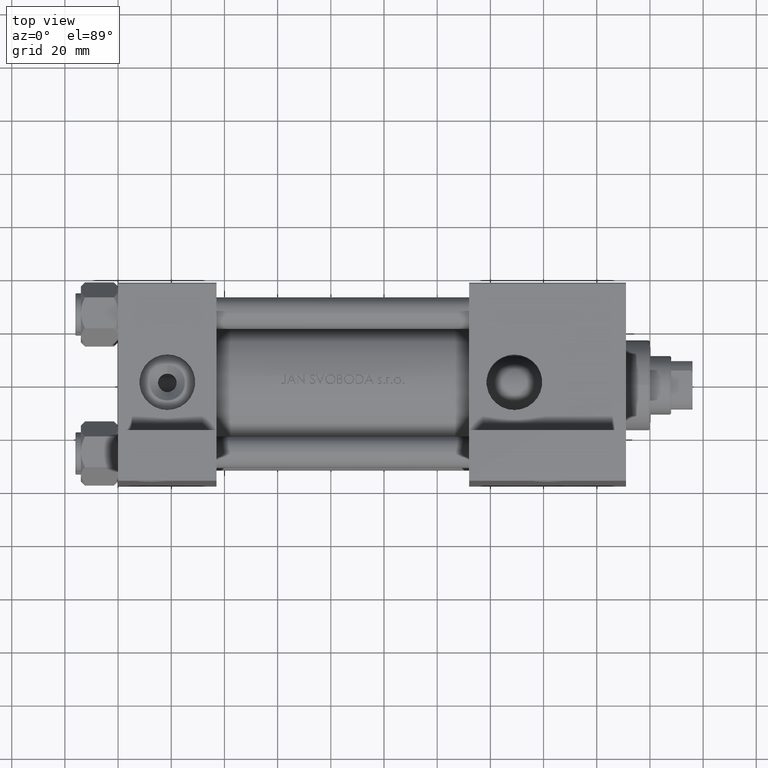
[diagram: clean part render]
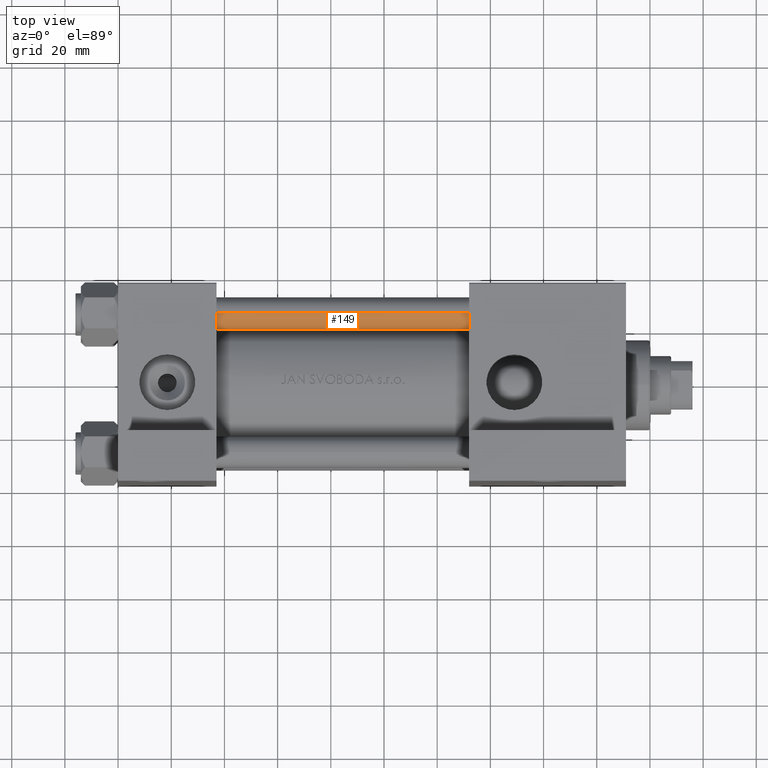
[diagram: same view with one face highlighted and labeled with its STEP entity id]
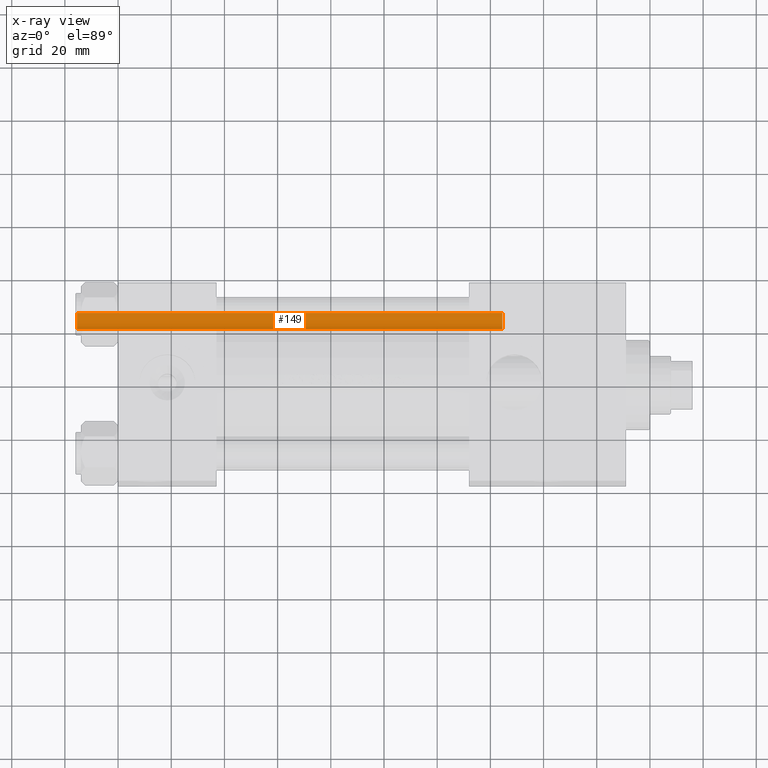
[diagram: x-ray of the same camera — body ghosted, the highlighted face saturated]
A machine part, top view. The second image highlights one B-rep face of the part: STEP entity #149.
The next image is the same camera in x-ray: the body ghosted, the highlighted face saturated — about 0% of this face is hidden behind the body in this view.
In plain terms, the highlighted cylindrical surface (edge-blend (fillet) strip) has radius 6 mm, axis along (-1, -0, -0).
Its self-contained STEP definition (entity closure, byte-faithful):
#109 = EDGE_CURVE ( 'NONE', #46032, #20134, #20082, .T. ) ;
#149 = ADVANCED_FACE ( 'NONE', ( #26992 ), #42179, .T. ) ;
#2237 = VERTEX_POINT ( 'NONE', #43645 ) ;
#3499 = ORIENTED_EDGE ( 'NONE', *, *, #28841, .F. ) ;
#6013 = AXIS2_PLACEMENT_3D ( 'NONE', #35830, #24117, #31609 ) ;
#7099 = VECTOR ( 'NONE', #14224, 1000.000000000000000 ) ;
#8632 = ORIENTED_EDGE ( 'NONE', *, *, #36941, .T. ) ;
#11261 = CARTESIAN_POINT ( 'NONE',  ( 6.000000000000000888, 7.347880794884120722E-16, 160.5000000000000000 ) ) ;
#11655 = CARTESIAN_POINT ( 'NONE',  ( -6.000000000000000888, 0.000000000000000000, 161.0000000000000000 ) ) ;
#13478 = EDGE_LOOP ( 'NONE', ( #3499, #38896, #8632, #44766 ) ) ;
#14224 = DIRECTION ( 'NONE',  ( -0.000000000000000000, -0.000000000000000000, -1.000000000000000000 ) ) ;
#16009 = DIRECTION ( 'NONE',  ( -1.000000000000000000, 0.000000000000000000, 0.000000000000000000 ) ) ;
#16756 = VECTOR ( 'NONE', #46254, 1000.000000000000000 ) ;
#16783 = EDGE_CURVE ( 'NONE', #19320, #2237, #32272, .T. ) ;
#19320 = VERTEX_POINT ( 'NONE', #39777 ) ;
#20082 = CIRCLE ( 'NONE', #30452, 6.000000000000000888 ) ;
#20134 = VERTEX_POINT ( 'NONE', #37311 ) ;
#22199 = LINE ( 'NONE', #41618, #7099 ) ;
#23242 = CARTESIAN_POINT ( 'NONE',  ( 0.000000000000000000, 0.000000000000000000, 161.0000000000000000 ) ) ;
#23498 = DIRECTION ( 'NONE',  ( 1.000000000000000000, 0.000000000000000000, 0.000000000000000000 ) ) ;
#24117 = DIRECTION ( 'NONE',  ( -0.000000000000000000, -0.000000000000000000, 1.000000000000000000 ) ) ;
#26443 = AXIS2_PLACEMENT_3D ( 'NONE', #23242, #30985, #16009 ) ;
#26992 = FACE_OUTER_BOUND ( 'NONE', #13478, .T. ) ;
#28841 = EDGE_CURVE ( 'NONE', #46032, #2237, #22199, .T. ) ;
#30452 = AXIS2_PLACEMENT_3D ( 'NONE', #46393, #41684, #23498 ) ;
#30985 = DIRECTION ( 'NONE',  ( -0.000000000000000000, -0.000000000000000000, -1.000000000000000000 ) ) ;
#31609 = DIRECTION ( 'NONE',  ( 1.000000000000000000, 0.000000000000000000, 0.000000000000000000 ) ) ;
#32272 = CIRCLE ( 'NONE', #6013, 6.000000000000000888 ) ;
#35066 = LINE ( 'NONE', #11655, #16756 ) ;
#35830 = CARTESIAN_POINT ( 'NONE',  ( 0.000000000000000000, 0.000000000000000000, 0.4999999999999726885 ) ) ;
#36941 = EDGE_CURVE ( 'NONE', #20134, #19320, #35066, .T. ) ;
#37311 = CARTESIAN_POINT ( 'NONE',  ( -6.000000000000000888, 0.000000000000000000, 160.5000000000000000 ) ) ;
#38896 = ORIENTED_EDGE ( 'NONE', *, *, #109, .T. ) ;
#39777 = CARTESIAN_POINT ( 'NONE',  ( -6.000000000000000888, 0.000000000000000000, 0.4999999999999726885 ) ) ;
#41618 = CARTESIAN_POINT ( 'NONE',  ( 6.000000000000000888, 7.347880794884120722E-16, 161.0000000000000000 ) ) ;
#41684 = DIRECTION ( 'NONE',  ( 0.000000000000000000, 0.000000000000000000, -1.000000000000000000 ) ) ;
#42179 = CYLINDRICAL_SURFACE ( 'NONE', #26443, 6.000000000000000888 ) ;
#43645 = CARTESIAN_POINT ( 'NONE',  ( 6.000000000000000888, 7.347880794884120722E-16, 0.4999999999999726885 ) ) ;
#44766 = ORIENTED_EDGE ( 'NONE', *, *, #16783, .T. ) ;
#46032 = VERTEX_POINT ( 'NONE', #11261 ) ;
#46254 = DIRECTION ( 'NONE',  ( -0.000000000000000000, -0.000000000000000000, -1.000000000000000000 ) ) ;
#46393 = CARTESIAN_POINT ( 'NONE',  ( 0.000000000000000000, 0.000000000000000000, 160.5000000000000000 ) ) ;